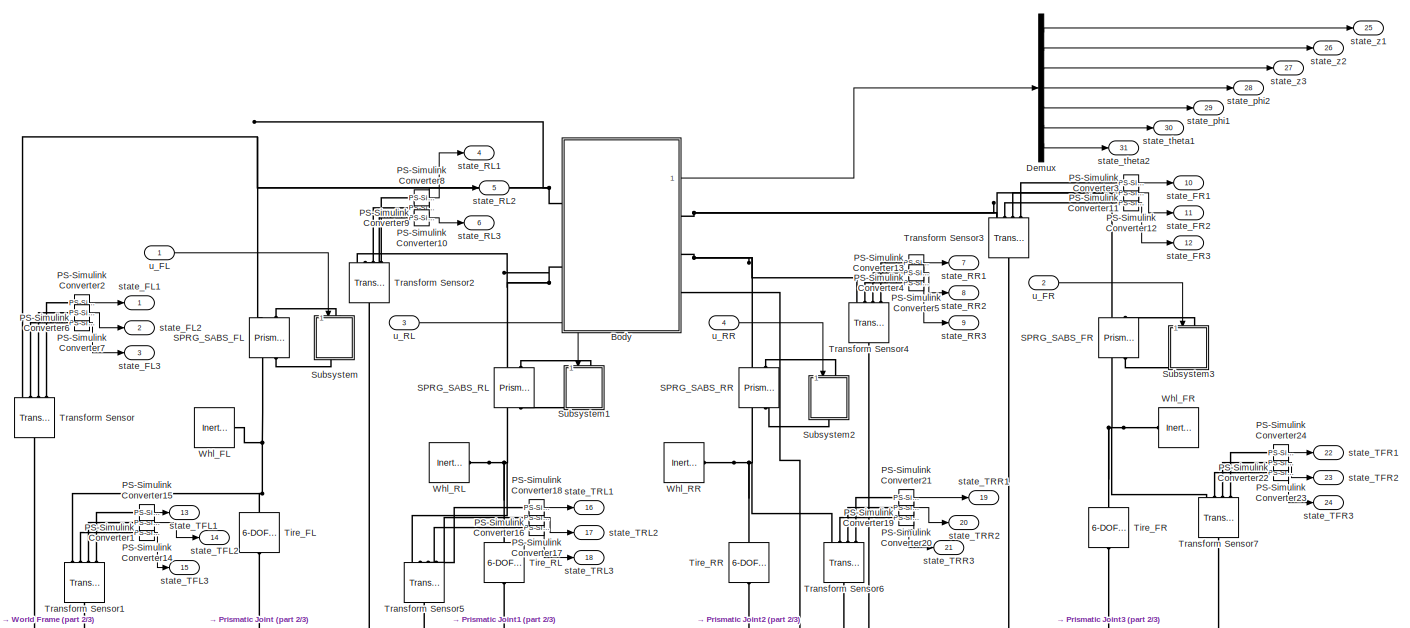
[diagram: root canvas - part 1/3, full width, top band]
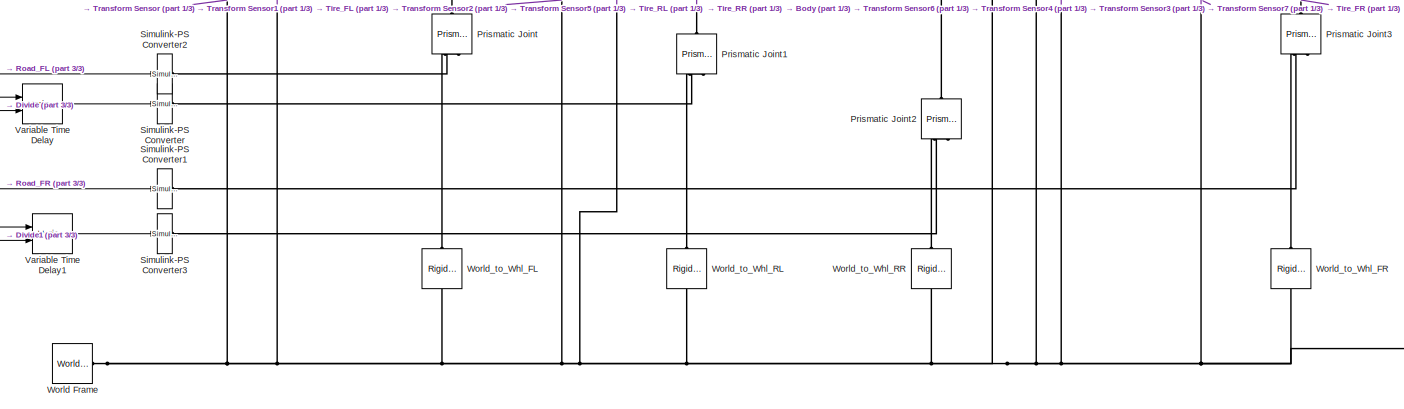
[diagram: root canvas - part 2/3, full width, bottom band]
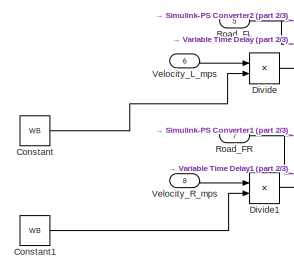
[diagram: root canvas - part 3/3, bottom left region]
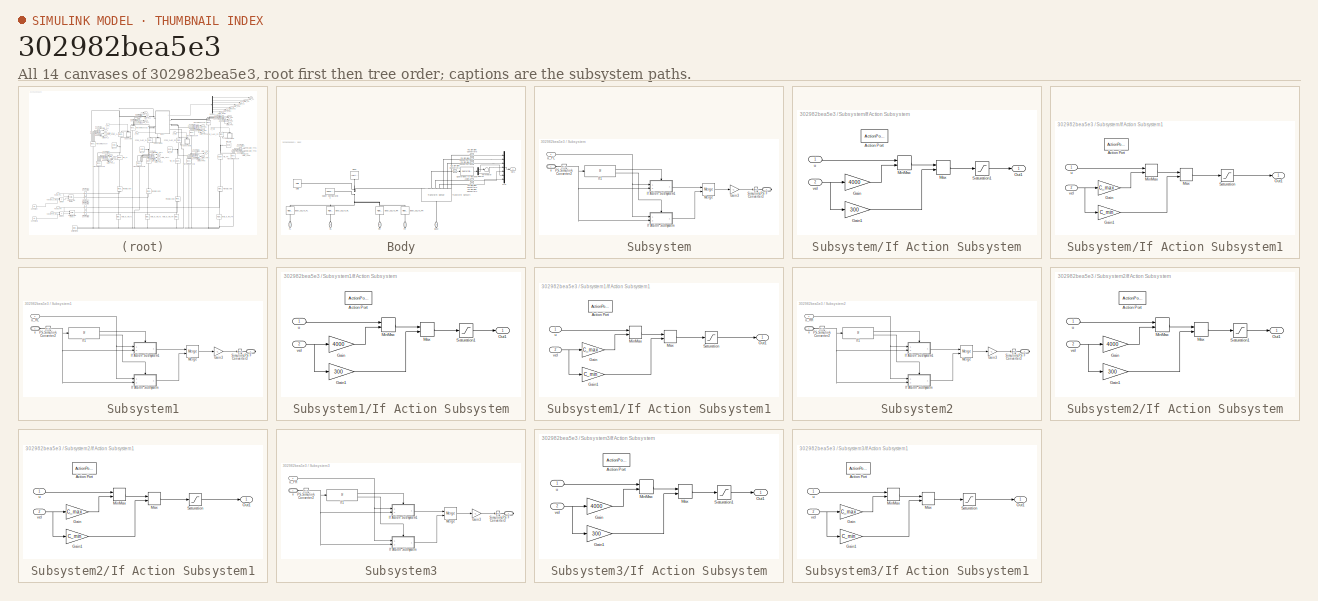
[diagram: thumbnail index - all 14 canvases of the model, root first then tree order]
MODEL slx_302982bea5e3
KIND model
CONFIG AbsTol = auto
CONFIG EnableMultiTasking = off
CONFIG FixedStep = 0.002
CONFIG MaxStep = auto
CONFIG MinStep = auto
CONFIG PreLoadFcn = fullcar_data
CONFIG RelTol = 1e-3
CONFIG SampleTimeConstraint = Unconstrained
CONFIG Solver = FixedStepAuto
CONFIG SolverName = FixedStepAuto
CONFIG StartTime = 0.0
CONFIG StopTime = inf
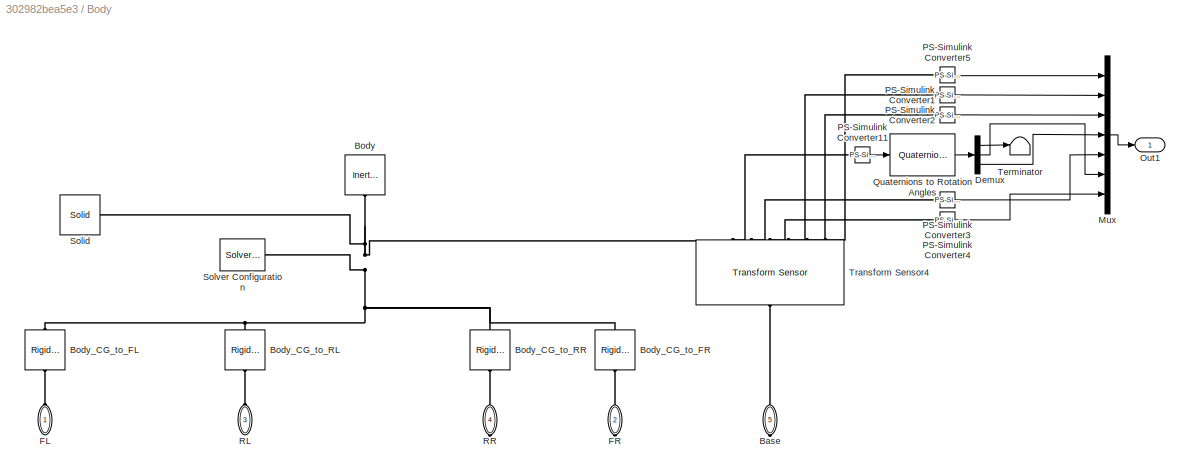
BLOCK [SubSystem] Body
  Ports = [0, 1, 0, 0, 0, 2, 3]
  RequestExecContextInheritance = off
BLOCK [PMIOPort] Body/Base
  Port = 5
  Side = Right
BLOCK [Reference] Body/Body  REF=sm_lib/Body Elements/Inertia
  Ports = [0, 0, 0, 0, 0, 0, 1]
  SourceBlock = sm_lib/Body Elements/Inertia
  SourceProductBaseCode = MS
  SourceProductName = Simscape Multibody
  SourceType = Inertia
BLOCK [Reference] Body/Body_CG_to_FL  REF=sm_lib/Frames and
Transforms/Rigid
Transform
  Ports = [0, 0, 0, 0, 0, 1, 1]
  SourceBlock = sm_lib/Frames and\nTransforms/Rigid\nTransform
  SourceProductBaseCode = MS
  SourceProductName = Simscape Multibody
  SourceType = Rigid\nTransform
BLOCK [Reference] Body/Body_CG_to_FR  REF=sm_lib/Frames and
Transforms/Rigid
Transform
  Ports = [0, 0, 0, 0, 0, 1, 1]
  SourceBlock = sm_lib/Frames and\nTransforms/Rigid\nTransform
  SourceProductBaseCode = MS
  SourceProductName = Simscape Multibody
  SourceType = Rigid\nTransform
BLOCK [Reference] Body/Body_CG_to_RL  REF=sm_lib/Frames and
Transforms/Rigid
Transform
  Ports = [0, 0, 0, 0, 0, 1, 1]
  SourceBlock = sm_lib/Frames and\nTransforms/Rigid\nTransform
  SourceProductBaseCode = MS
  SourceProductName = Simscape Multibody
  SourceType = Rigid\nTransform
BLOCK [Reference] Body/Body_CG_to_RR  REF=sm_lib/Frames and
Transforms/Rigid
Transform
  Ports = [0, 0, 0, 0, 0, 1, 1]
  SourceBlock = sm_lib/Frames and\nTransforms/Rigid\nTransform
  SourceProductBaseCode = MS
  SourceProductName = Simscape Multibody
  SourceType = Rigid\nTransform
BLOCK [Demux] Body/Demux
  DisplayOption = bar
  Outputs = 3
  Ports = [1, 3]
BLOCK [PMIOPort] Body/FL
  Side = Left
BLOCK [PMIOPort] Body/FR
  Port = 2
  Side = Right
BLOCK [Mux] Body/Mux
  DisplayOption = bar
  Inputs = 7
  Ports = [7, 1]
BLOCK [Outport] Body/Out1
  IconDisplay = Port number
BLOCK [Reference] Body/PS-Simulink Converter1  REF=nesl_utility/PS-Simulink
Converter
  Ports = [0, 1, 0, 0, 0, 1]
  SourceBlock = nesl_utility/PS-Simulink\nConverter
  SourceProductBaseCode = SS
  SourceProductName = Simscape
  SourceType = PS-Simulink\nConverter
BLOCK [Reference] Body/PS-Simulink Converter11  REF=nesl_utility/PS-Simulink
Converter
  Ports = [0, 1, 0, 0, 0, 1]
  SourceBlock = nesl_utility/PS-Simulink\nConverter
  SourceProductBaseCode = SS
  SourceProductName = Simscape
  SourceType = PS-Simulink\nConverter
BLOCK [Reference] Body/PS-Simulink Converter2  REF=nesl_utility/PS-Simulink
Converter
  Ports = [0, 1, 0, 0, 0, 1]
  SourceBlock = nesl_utility/PS-Simulink\nConverter
  SourceProductBaseCode = SS
  SourceProductName = Simscape
  SourceType = PS-Simulink\nConverter
BLOCK [Reference] Body/PS-Simulink Converter3  REF=nesl_utility/PS-Simulink
Converter
  Ports = [0, 1, 0, 0, 0, 1]
  SourceBlock = nesl_utility/PS-Simulink\nConverter
  SourceProductBaseCode = SS
  SourceProductName = Simscape
  SourceType = PS-Simulink\nConverter
BLOCK [Reference] Body/PS-Simulink Converter4  REF=nesl_utility/PS-Simulink
Converter
  Ports = [0, 1, 0, 0, 0, 1]
  SourceBlock = nesl_utility/PS-Simulink\nConverter
  SourceProductBaseCode = SS
  SourceProductName = Simscape
  SourceType = PS-Simulink\nConverter
BLOCK [Reference] Body/PS-Simulink Converter5  REF=nesl_utility/PS-Simulink
Converter
  Ports = [0, 1, 0, 0, 0, 1]
  SourceBlock = nesl_utility/PS-Simulink\nConverter
  SourceProductBaseCode = SS
  SourceProductName = Simscape
  SourceType = PS-Simulink\nConverter
BLOCK [Reference] Body/Quaternions to Rotation Angles  REF=sharedtransform/Quaternions to Rotation Angles
  AttributesFormatString = Rotation Order: %<rotationOrder>
  Ports = [1, 1]
  SourceBlock = sharedtransform/Quaternions to Rotation Angles
  SourceProductBaseCode = AE
  SourceProductName = Aerospace Blockset
  SourceType = Quat2Ang
BLOCK [PMIOPort] Body/RL
  Port = 3
  Side = Left
BLOCK [PMIOPort] Body/RR
  Port = 4
  Side = Right
BLOCK [Reference] Body/Solid  REF=sm_lib/Body Elements/Solid
  Ports = [0, 0, 0, 0, 0, 0, 1]
  SourceBlock = sm_lib/Body Elements/Solid
  SourceProductBaseCode = MS
  SourceProductName = Simscape Multibody
  SourceType = Solid
BLOCK [Reference] Body/Solver Configuration  REF=nesl_utility/Solver
Configuration
  Ports = [0, 0, 0, 0, 0, 0, 1]
  SourceBlock = nesl_utility/Solver\nConfiguration
  SourceProductBaseCode = SS
  SourceProductName = Simscape
  SourceType = Solver\nConfiguration
BLOCK [Terminator] Body/Terminator
BLOCK [Reference] Body/Transform Sensor4  REF=sm_lib/Frames and
Transforms/Transform
Sensor
  Ports = [0, 0, 0, 0, 0, 1, 7]
  SourceBlock = sm_lib/Frames and\nTransforms/Transform\nSensor
  SourceProductBaseCode = MS
  SourceProductName = Simscape Multibody
  SourceType = Transform\nSensor
BLOCK [Constant] Constant
  Value = WB
BLOCK [Constant] Constant1
  Value = WB
BLOCK [Demux] Demux
  DisplayOption = bar
  Outputs = 7
  Ports = [1, 7]
BLOCK [Product] Divide
  InputSameDT = off
  Inputs = /*
  OutDataTypeStr = Inherit: Inherit via internal rule
  Ports = [2, 1]
  RndMeth = Floor
  SaturateOnIntegerOverflow = off
BLOCK [Product] Divide1
  InputSameDT = off
  Inputs = /*
  OutDataTypeStr = Inherit: Inherit via internal rule
  Ports = [2, 1]
  RndMeth = Floor
  SaturateOnIntegerOverflow = off
BLOCK [Reference] PS-Simulink Converter1  REF=nesl_utility/PS-Simulink
Converter
  Ports = [0, 1, 0, 0, 0, 1]
  SourceBlock = nesl_utility/PS-Simulink\nConverter
  SourceProductBaseCode = SS
  SourceProductName = Simscape
  SourceType = PS-Simulink\nConverter
BLOCK [Reference] PS-Simulink Converter10  REF=nesl_utility/PS-Simulink
Converter
  Ports = [0, 1, 0, 0, 0, 1]
  SourceBlock = nesl_utility/PS-Simulink\nConverter
  SourceProductBaseCode = SS
  SourceProductName = Simscape
  SourceType = PS-Simulink\nConverter
BLOCK [Reference] PS-Simulink Converter11  REF=nesl_utility/PS-Simulink
Converter
  Ports = [0, 1, 0, 0, 0, 1]
  SourceBlock = nesl_utility/PS-Simulink\nConverter
  SourceProductBaseCode = SS
  SourceProductName = Simscape
  SourceType = PS-Simulink\nConverter
BLOCK [Reference] PS-Simulink Converter12  REF=nesl_utility/PS-Simulink
Converter
  Ports = [0, 1, 0, 0, 0, 1]
  SourceBlock = nesl_utility/PS-Simulink\nConverter
  SourceProductBaseCode = SS
  SourceProductName = Simscape
  SourceType = PS-Simulink\nConverter
BLOCK [Reference] PS-Simulink Converter13  REF=nesl_utility/PS-Simulink
Converter
  Ports = [0, 1, 0, 0, 0, 1]
  SourceBlock = nesl_utility/PS-Simulink\nConverter
  SourceProductBaseCode = SS
  SourceProductName = Simscape
  SourceType = PS-Simulink\nConverter
BLOCK [Reference] PS-Simulink Converter14  REF=nesl_utility/PS-Simulink
Converter
  Ports = [0, 1, 0, 0, 0, 1]
  SourceBlock = nesl_utility/PS-Simulink\nConverter
  SourceProductBaseCode = SS
  SourceProductName = Simscape
  SourceType = PS-Simulink\nConverter
BLOCK [Reference] PS-Simulink Converter15  REF=nesl_utility/PS-Simulink
Converter
  Ports = [0, 1, 0, 0, 0, 1]
  SourceBlock = nesl_utility/PS-Simulink\nConverter
  SourceProductBaseCode = SS
  SourceProductName = Simscape
  SourceType = PS-Simulink\nConverter
BLOCK [Reference] PS-Simulink Converter16  REF=nesl_utility/PS-Simulink
Converter
  Ports = [0, 1, 0, 0, 0, 1]
  SourceBlock = nesl_utility/PS-Simulink\nConverter
  SourceProductBaseCode = SS
  SourceProductName = Simscape
  SourceType = PS-Simulink\nConverter
BLOCK [Reference] PS-Simulink Converter17  REF=nesl_utility/PS-Simulink
Converter
  Ports = [0, 1, 0, 0, 0, 1]
  SourceBlock = nesl_utility/PS-Simulink\nConverter
  SourceProductBaseCode = SS
  SourceProductName = Simscape
  SourceType = PS-Simulink\nConverter
BLOCK [Reference] PS-Simulink Converter18  REF=nesl_utility/PS-Simulink
Converter
  Ports = [0, 1, 0, 0, 0, 1]
  SourceBlock = nesl_utility/PS-Simulink\nConverter
  SourceProductBaseCode = SS
  SourceProductName = Simscape
  SourceType = PS-Simulink\nConverter
BLOCK [Reference] PS-Simulink Converter19  REF=nesl_utility/PS-Simulink
Converter
  Ports = [0, 1, 0, 0, 0, 1]
  SourceBlock = nesl_utility/PS-Simulink\nConverter
  SourceProductBaseCode = SS
  SourceProductName = Simscape
  SourceType = PS-Simulink\nConverter
BLOCK [Reference] PS-Simulink Converter2  REF=nesl_utility/PS-Simulink
Converter
  Ports = [0, 1, 0, 0, 0, 1]
  SourceBlock = nesl_utility/PS-Simulink\nConverter
  SourceProductBaseCode = SS
  SourceProductName = Simscape
  SourceType = PS-Simulink\nConverter
BLOCK [Reference] PS-Simulink Converter20  REF=nesl_utility/PS-Simulink
Converter
  Ports = [0, 1, 0, 0, 0, 1]
  SourceBlock = nesl_utility/PS-Simulink\nConverter
  SourceProductBaseCode = SS
  SourceProductName = Simscape
  SourceType = PS-Simulink\nConverter
BLOCK [Reference] PS-Simulink Converter21  REF=nesl_utility/PS-Simulink
Converter
  Ports = [0, 1, 0, 0, 0, 1]
  SourceBlock = nesl_utility/PS-Simulink\nConverter
  SourceProductBaseCode = SS
  SourceProductName = Simscape
  SourceType = PS-Simulink\nConverter
BLOCK [Reference] PS-Simulink Converter22  REF=nesl_utility/PS-Simulink
Converter
  Ports = [0, 1, 0, 0, 0, 1]
  SourceBlock = nesl_utility/PS-Simulink\nConverter
  SourceProductBaseCode = SS
  SourceProductName = Simscape
  SourceType = PS-Simulink\nConverter
BLOCK [Reference] PS-Simulink Converter23  REF=nesl_utility/PS-Simulink
Converter
  Ports = [0, 1, 0, 0, 0, 1]
  SourceBlock = nesl_utility/PS-Simulink\nConverter
  SourceProductBaseCode = SS
  SourceProductName = Simscape
  SourceType = PS-Simulink\nConverter
BLOCK [Reference] PS-Simulink Converter24  REF=nesl_utility/PS-Simulink
Converter
  Ports = [0, 1, 0, 0, 0, 1]
  SourceBlock = nesl_utility/PS-Simulink\nConverter
  SourceProductBaseCode = SS
  SourceProductName = Simscape
  SourceType = PS-Simulink\nConverter
BLOCK [Reference] PS-Simulink Converter3  REF=nesl_utility/PS-Simulink
Converter
  Ports = [0, 1, 0, 0, 0, 1]
  SourceBlock = nesl_utility/PS-Simulink\nConverter
  SourceProductBaseCode = SS
  SourceProductName = Simscape
  SourceType = PS-Simulink\nConverter
BLOCK [Reference] PS-Simulink Converter4  REF=nesl_utility/PS-Simulink
Converter
  Ports = [0, 1, 0, 0, 0, 1]
  SourceBlock = nesl_utility/PS-Simulink\nConverter
  SourceProductBaseCode = SS
  SourceProductName = Simscape
  SourceType = PS-Simulink\nConverter
BLOCK [Reference] PS-Simulink Converter5  REF=nesl_utility/PS-Simulink
Converter
  Ports = [0, 1, 0, 0, 0, 1]
  SourceBlock = nesl_utility/PS-Simulink\nConverter
  SourceProductBaseCode = SS
  SourceProductName = Simscape
  SourceType = PS-Simulink\nConverter
BLOCK [Reference] PS-Simulink Converter6  REF=nesl_utility/PS-Simulink
Converter
  Ports = [0, 1, 0, 0, 0, 1]
  SourceBlock = nesl_utility/PS-Simulink\nConverter
  SourceProductBaseCode = SS
  SourceProductName = Simscape
  SourceType = PS-Simulink\nConverter
BLOCK [Reference] PS-Simulink Converter7  REF=nesl_utility/PS-Simulink
Converter
  Ports = [0, 1, 0, 0, 0, 1]
  SourceBlock = nesl_utility/PS-Simulink\nConverter
  SourceProductBaseCode = SS
  SourceProductName = Simscape
  SourceType = PS-Simulink\nConverter
BLOCK [Reference] PS-Simulink Converter8  REF=nesl_utility/PS-Simulink
Converter
  Ports = [0, 1, 0, 0, 0, 1]
  SourceBlock = nesl_utility/PS-Simulink\nConverter
  SourceProductBaseCode = SS
  SourceProductName = Simscape
  SourceType = PS-Simulink\nConverter
BLOCK [Reference] PS-Simulink Converter9  REF=nesl_utility/PS-Simulink
Converter
  Ports = [0, 1, 0, 0, 0, 1]
  SourceBlock = nesl_utility/PS-Simulink\nConverter
  SourceProductBaseCode = SS
  SourceProductName = Simscape
  SourceType = PS-Simulink\nConverter
BLOCK [Reference] Prismatic Joint  REF=sm_lib/Joints/Prismatic
Joint
  Ports = [0, 0, 0, 0, 0, 2, 1]
  SourceBlock = sm_lib/Joints/Prismatic\nJoint
  SourceProductBaseCode = MS
  SourceProductName = Simscape Multibody
  SourceType = Prismatic\nJoint
BLOCK [Reference] Prismatic Joint1  REF=sm_lib/Joints/Prismatic
Joint
  Ports = [0, 0, 0, 0, 0, 2, 1]
  SourceBlock = sm_lib/Joints/Prismatic\nJoint
  SourceProductBaseCode = MS
  SourceProductName = Simscape Multibody
  SourceType = Prismatic\nJoint
BLOCK [Reference] Prismatic Joint2  REF=sm_lib/Joints/Prismatic
Joint
  Ports = [0, 0, 0, 0, 0, 2, 1]
  SourceBlock = sm_lib/Joints/Prismatic\nJoint
  SourceProductBaseCode = MS
  SourceProductName = Simscape Multibody
  SourceType = Prismatic\nJoint
BLOCK [Reference] Prismatic Joint3  REF=sm_lib/Joints/Prismatic
Joint
  Ports = [0, 0, 0, 0, 0, 2, 1]
  SourceBlock = sm_lib/Joints/Prismatic\nJoint
  SourceProductBaseCode = MS
  SourceProductName = Simscape Multibody
  SourceType = Prismatic\nJoint
BLOCK [Inport] Road_FL 
  IconDisplay = Port number
  Port = 5
BLOCK [Inport] Road_FR 
  IconDisplay = Port number
  Port = 7
BLOCK [Reference] SPRG_SABS_FL  REF=sm_lib/Joints/Prismatic
Joint
  Ports = [0, 0, 0, 0, 0, 2, 2]
  SourceBlock = sm_lib/Joints/Prismatic\nJoint
  SourceProductBaseCode = MS
  SourceProductName = Simscape Multibody
  SourceType = Prismatic\nJoint
BLOCK [Reference] SPRG_SABS_FR  REF=sm_lib/Joints/Prismatic
Joint
  Ports = [0, 0, 0, 0, 0, 2, 2]
  SourceBlock = sm_lib/Joints/Prismatic\nJoint
  SourceProductBaseCode = MS
  SourceProductName = Simscape Multibody
  SourceType = Prismatic\nJoint
BLOCK [Reference] SPRG_SABS_RL  REF=sm_lib/Joints/Prismatic
Joint
  Ports = [0, 0, 0, 0, 0, 2, 2]
  SourceBlock = sm_lib/Joints/Prismatic\nJoint
  SourceProductBaseCode = MS
  SourceProductName = Simscape Multibody
  SourceType = Prismatic\nJoint
BLOCK [Reference] SPRG_SABS_RR  REF=sm_lib/Joints/Prismatic
Joint
  Ports = [0, 0, 0, 0, 0, 2, 2]
  SourceBlock = sm_lib/Joints/Prismatic\nJoint
  SourceProductBaseCode = MS
  SourceProductName = Simscape Multibody
  SourceType = Prismatic\nJoint
BLOCK [Reference] Simulink-PS Converter  REF=nesl_utility/Simulink-PS
Converter
  Ports = [1, 0, 0, 0, 0, 0, 1]
  SourceBlock = nesl_utility/Simulink-PS\nConverter
  SourceProductBaseCode = SS
  SourceProductName = Simscape
  SourceType = Simulink-PS\nConverter
BLOCK [Reference] Simulink-PS Converter1  REF=nesl_utility/Simulink-PS
Converter
  Ports = [1, 0, 0, 0, 0, 0, 1]
  SourceBlock = nesl_utility/Simulink-PS\nConverter
  SourceProductBaseCode = SS
  SourceProductName = Simscape
  SourceType = Simulink-PS\nConverter
BLOCK [Reference] Simulink-PS Converter2  REF=nesl_utility/Simulink-PS
Converter
  Ports = [1, 0, 0, 0, 0, 0, 1]
  SourceBlock = nesl_utility/Simulink-PS\nConverter
  SourceProductBaseCode = SS
  SourceProductName = Simscape
  SourceType = Simulink-PS\nConverter
BLOCK [Reference] Simulink-PS Converter3  REF=nesl_utility/Simulink-PS
Converter
  Ports = [1, 0, 0, 0, 0, 0, 1]
  SourceBlock = nesl_utility/Simulink-PS\nConverter
  SourceProductBaseCode = SS
  SourceProductName = Simscape
  SourceType = Simulink-PS\nConverter
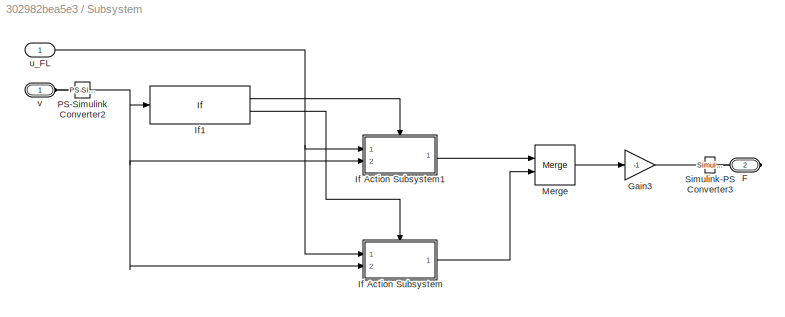
BLOCK [SubSystem] Subsystem
  Ports = [1, 0, 0, 0, 0, 1, 1]
  RequestExecContextInheritance = off
BLOCK [PMIOPort] Subsystem/F
  Port = 2
  Side = Right
BLOCK [Gain] Subsystem/Gain3
  Gain = -1
  OutDataTypeStr = Inherit: Inherit via internal rule
  ParamDataTypeStr = Inherit: Inherit via internal rule
  SaturateOnIntegerOverflow = off
BLOCK [SubSystem] Subsystem/If Action Subsystem
  Ports = [2, 1, 0, 0, 0, 0, 0, 1]
  RequestExecContextInheritance = off
  TreatAsAtomicUnit = on
BLOCK [ActionPort] Subsystem/If Action Subsystem/Action Port
BLOCK [Gain] Subsystem/If Action Subsystem/Gain
  Gain = 4000
  OutDataTypeStr = Inherit: Inherit via internal rule
  ParamDataTypeStr = Inherit: Inherit via internal rule
  SaturateOnIntegerOverflow = off
BLOCK [Gain] Subsystem/If Action Subsystem/Gain1
  Gain = 300
  OutDataTypeStr = Inherit: Inherit via internal rule
  ParamDataTypeStr = Inherit: Inherit via internal rule
  SaturateOnIntegerOverflow = off
BLOCK [MinMax] Subsystem/If Action Subsystem/Max
  Function = max
  InputSameDT = off
  Inputs = 2
  Ports = [2, 1]
  SaturateOnIntegerOverflow = off
BLOCK [MinMax] Subsystem/If Action Subsystem/MinMax
  InputSameDT = off
  Inputs = 2
  Ports = [2, 1]
  SaturateOnIntegerOverflow = off
BLOCK [Outport] Subsystem/If Action Subsystem/Out1
  IconDisplay = Port number
BLOCK [Saturate] Subsystem/If Action Subsystem/Saturation1
  InputPortMap = u0
  LowerLimit = -sat_limit
  Ports = [1, 1]
  UpperLimit = sat_limit
BLOCK [Inport] Subsystem/If Action Subsystem/u 
  IconDisplay = Port number
BLOCK [Inport] Subsystem/If Action Subsystem/vel 
  IconDisplay = Port number
  Port = 2
BLOCK [SubSystem] Subsystem/If Action Subsystem1
  Ports = [2, 1, 0, 0, 0, 0, 0, 1]
  RequestExecContextInheritance = off
  TreatAsAtomicUnit = on
BLOCK [ActionPort] Subsystem/If Action Subsystem1/Action Port
BLOCK [Gain] Subsystem/If Action Subsystem1/Gain
  Gain = C_max
  OutDataTypeStr = Inherit: Inherit via internal rule
  ParamDataTypeStr = Inherit: Inherit via internal rule
  SaturateOnIntegerOverflow = off
BLOCK [Gain] Subsystem/If Action Subsystem1/Gain1
  Gain = C_min
  OutDataTypeStr = Inherit: Inherit via internal rule
  ParamDataTypeStr = Inherit: Inherit via internal rule
  SaturateOnIntegerOverflow = off
BLOCK [MinMax] Subsystem/If Action Subsystem1/Max
  Function = max
  InputSameDT = off
  Inputs = 2
  Ports = [2, 1]
  SaturateOnIntegerOverflow = off
BLOCK [MinMax] Subsystem/If Action Subsystem1/MinMax
  InputSameDT = off
  Inputs = 2
  Ports = [2, 1]
  SaturateOnIntegerOverflow = off
BLOCK [Outport] Subsystem/If Action Subsystem1/Out1
  IconDisplay = Port number
BLOCK [Saturate] Subsystem/If Action Subsystem1/Saturation
  InputPortMap = u0
  LowerLimit = -sat_limit
  Ports = [1, 1]
  UpperLimit = sat_limit
BLOCK [Inport] Subsystem/If Action Subsystem1/u 
  IconDisplay = Port number
BLOCK [Inport] Subsystem/If Action Subsystem1/vel 
  IconDisplay = Port number
  Port = 2
BLOCK [If] Subsystem/If1
  Ports = [1, 2]
BLOCK [Merge] Subsystem/Merge
  Ports = [2, 1]
BLOCK [Reference] Subsystem/PS-Simulink Converter2  REF=nesl_utility/PS-Simulink
Converter
  Ports = [0, 1, 0, 0, 0, 1]
  SourceBlock = nesl_utility/PS-Simulink\nConverter
  SourceProductBaseCode = SS
  SourceProductName = Simscape
  SourceType = PS-Simulink\nConverter
BLOCK [Reference] Subsystem/Simulink-PS Converter3  REF=nesl_utility/Simulink-PS
Converter
  Ports = [1, 0, 0, 0, 0, 0, 1]
  SourceBlock = nesl_utility/Simulink-PS\nConverter
  SourceProductBaseCode = SS
  SourceProductName = Simscape
  SourceType = Simulink-PS\nConverter
BLOCK [Inport] Subsystem/u_FL 
  IconDisplay = Port number
BLOCK [PMIOPort] Subsystem/v 
  Side = Left
BLOCK [SubSystem] Subsystem1
  Ports = [1, 0, 0, 0, 0, 1, 1]
  RequestExecContextInheritance = off
BLOCK [PMIOPort] Subsystem1/F
  Port = 2
  Side = Right
BLOCK [Gain] Subsystem1/Gain3
  Gain = -1
  OutDataTypeStr = Inherit: Inherit via internal rule
  ParamDataTypeStr = Inherit: Inherit via internal rule
  SaturateOnIntegerOverflow = off
BLOCK [SubSystem] Subsystem1/If Action Subsystem
  Ports = [2, 1, 0, 0, 0, 0, 0, 1]
  RequestExecContextInheritance = off
  TreatAsAtomicUnit = on
BLOCK [ActionPort] Subsystem1/If Action Subsystem/Action Port
BLOCK [Gain] Subsystem1/If Action Subsystem/Gain
  Gain = 4000
  OutDataTypeStr = Inherit: Inherit via internal rule
  ParamDataTypeStr = Inherit: Inherit via internal rule
  SaturateOnIntegerOverflow = off
BLOCK [Gain] Subsystem1/If Action Subsystem/Gain1
  Gain = 300
  OutDataTypeStr = Inherit: Inherit via internal rule
  ParamDataTypeStr = Inherit: Inherit via internal rule
  SaturateOnIntegerOverflow = off
BLOCK [MinMax] Subsystem1/If Action Subsystem/Max
  Function = max
  InputSameDT = off
  Inputs = 2
  Ports = [2, 1]
  SaturateOnIntegerOverflow = off
BLOCK [MinMax] Subsystem1/If Action Subsystem/MinMax
  InputSameDT = off
  Inputs = 2
  Ports = [2, 1]
  SaturateOnIntegerOverflow = off
BLOCK [Outport] Subsystem1/If Action Subsystem/Out1
  IconDisplay = Port number
BLOCK [Saturate] Subsystem1/If Action Subsystem/Saturation1
  InputPortMap = u0
  LowerLimit = -sat_limit
  Ports = [1, 1]
  UpperLimit = sat_limit
BLOCK [Inport] Subsystem1/If Action Subsystem/u 
  IconDisplay = Port number
BLOCK [Inport] Subsystem1/If Action Subsystem/vel 
  IconDisplay = Port number
  Port = 2
BLOCK [SubSystem] Subsystem1/If Action Subsystem1
  Ports = [2, 1, 0, 0, 0, 0, 0, 1]
  RequestExecContextInheritance = off
  TreatAsAtomicUnit = on
BLOCK [ActionPort] Subsystem1/If Action Subsystem1/Action Port
BLOCK [Gain] Subsystem1/If Action Subsystem1/Gain
  Gain = C_max
  OutDataTypeStr = Inherit: Inherit via internal rule
  ParamDataTypeStr = Inherit: Inherit via internal rule
  SaturateOnIntegerOverflow = off
BLOCK [Gain] Subsystem1/If Action Subsystem1/Gain1
  Gain = C_min
  OutDataTypeStr = Inherit: Inherit via internal rule
  ParamDataTypeStr = Inherit: Inherit via internal rule
  SaturateOnIntegerOverflow = off
BLOCK [MinMax] Subsystem1/If Action Subsystem1/Max
  Function = max
  InputSameDT = off
  Inputs = 2
  Ports = [2, 1]
  SaturateOnIntegerOverflow = off
BLOCK [MinMax] Subsystem1/If Action Subsystem1/MinMax
  InputSameDT = off
  Inputs = 2
  Ports = [2, 1]
  SaturateOnIntegerOverflow = off
BLOCK [Outport] Subsystem1/If Action Subsystem1/Out1
  IconDisplay = Port number
BLOCK [Saturate] Subsystem1/If Action Subsystem1/Saturation
  InputPortMap = u0
  LowerLimit = -sat_limit
  Ports = [1, 1]
  UpperLimit = sat_limit
BLOCK [Inport] Subsystem1/If Action Subsystem1/u 
  IconDisplay = Port number
BLOCK [Inport] Subsystem1/If Action Subsystem1/vel 
  IconDisplay = Port number
  Port = 2
BLOCK [If] Subsystem1/If1
  Ports = [1, 2]
BLOCK [Merge] Subsystem1/Merge
  Ports = [2, 1]
BLOCK [Reference] Subsystem1/PS-Simulink Converter2  REF=nesl_utility/PS-Simulink
Converter
  Ports = [0, 1, 0, 0, 0, 1]
  SourceBlock = nesl_utility/PS-Simulink\nConverter
  SourceProductBaseCode = SS
  SourceProductName = Simscape
  SourceType = PS-Simulink\nConverter
BLOCK [Reference] Subsystem1/Simulink-PS Converter3  REF=nesl_utility/Simulink-PS
Converter
  Ports = [1, 0, 0, 0, 0, 0, 1]
  SourceBlock = nesl_utility/Simulink-PS\nConverter
  SourceProductBaseCode = SS
  SourceProductName = Simscape
  SourceType = Simulink-PS\nConverter
BLOCK [Inport] Subsystem1/u_RL 
  IconDisplay = Port number
BLOCK [PMIOPort] Subsystem1/v 
  Side = Left
BLOCK [SubSystem] Subsystem2
  Ports = [1, 0, 0, 0, 0, 1, 1]
  RequestExecContextInheritance = off
BLOCK [PMIOPort] Subsystem2/F
  Port = 2
  Side = Right
BLOCK [Gain] Subsystem2/Gain3
  Gain = -1
  OutDataTypeStr = Inherit: Inherit via internal rule
  ParamDataTypeStr = Inherit: Inherit via internal rule
  SaturateOnIntegerOverflow = off
BLOCK [SubSystem] Subsystem2/If Action Subsystem
  Ports = [2, 1, 0, 0, 0, 0, 0, 1]
  RequestExecContextInheritance = off
  TreatAsAtomicUnit = on
BLOCK [ActionPort] Subsystem2/If Action Subsystem/Action Port
BLOCK [Gain] Subsystem2/If Action Subsystem/Gain
  Gain = 4000
  OutDataTypeStr = Inherit: Inherit via internal rule
  ParamDataTypeStr = Inherit: Inherit via internal rule
  SaturateOnIntegerOverflow = off
BLOCK [Gain] Subsystem2/If Action Subsystem/Gain1
  Gain = 300
  OutDataTypeStr = Inherit: Inherit via internal rule
  ParamDataTypeStr = Inherit: Inherit via internal rule
  SaturateOnIntegerOverflow = off
BLOCK [MinMax] Subsystem2/If Action Subsystem/Max
  Function = max
  InputSameDT = off
  Inputs = 2
  Ports = [2, 1]
  SaturateOnIntegerOverflow = off
BLOCK [MinMax] Subsystem2/If Action Subsystem/MinMax
  InputSameDT = off
  Inputs = 2
  Ports = [2, 1]
  SaturateOnIntegerOverflow = off
BLOCK [Outport] Subsystem2/If Action Subsystem/Out1
  IconDisplay = Port number
BLOCK [Saturate] Subsystem2/If Action Subsystem/Saturation1
  InputPortMap = u0
  LowerLimit = -sat_limit
  Ports = [1, 1]
  UpperLimit = sat_limit
BLOCK [Inport] Subsystem2/If Action Subsystem/u 
  IconDisplay = Port number
BLOCK [Inport] Subsystem2/If Action Subsystem/vel 
  IconDisplay = Port number
  Port = 2
BLOCK [SubSystem] Subsystem2/If Action Subsystem1
  Ports = [2, 1, 0, 0, 0, 0, 0, 1]
  RequestExecContextInheritance = off
  TreatAsAtomicUnit = on
BLOCK [ActionPort] Subsystem2/If Action Subsystem1/Action Port
BLOCK [Gain] Subsystem2/If Action Subsystem1/Gain
  Gain = C_max
  OutDataTypeStr = Inherit: Inherit via internal rule
  ParamDataTypeStr = Inherit: Inherit via internal rule
  SaturateOnIntegerOverflow = off
BLOCK [Gain] Subsystem2/If Action Subsystem1/Gain1
  Gain = C_min
  OutDataTypeStr = Inherit: Inherit via internal rule
  ParamDataTypeStr = Inherit: Inherit via internal rule
  SaturateOnIntegerOverflow = off
BLOCK [MinMax] Subsystem2/If Action Subsystem1/Max
  Function = max
  InputSameDT = off
  Inputs = 2
  Ports = [2, 1]
  SaturateOnIntegerOverflow = off
BLOCK [MinMax] Subsystem2/If Action Subsystem1/MinMax
  InputSameDT = off
  Inputs = 2
  Ports = [2, 1]
  SaturateOnIntegerOverflow = off
BLOCK [Outport] Subsystem2/If Action Subsystem1/Out1
  IconDisplay = Port number
BLOCK [Saturate] Subsystem2/If Action Subsystem1/Saturation
  InputPortMap = u0
  LowerLimit = -sat_limit
  Ports = [1, 1]
  UpperLimit = sat_limit
BLOCK [Inport] Subsystem2/If Action Subsystem1/u 
  IconDisplay = Port number
BLOCK [Inport] Subsystem2/If Action Subsystem1/vel 
  IconDisplay = Port number
  Port = 2
BLOCK [If] Subsystem2/If1
  Ports = [1, 2]
BLOCK [Merge] Subsystem2/Merge
  Ports = [2, 1]
BLOCK [Reference] Subsystem2/PS-Simulink Converter2  REF=nesl_utility/PS-Simulink
Converter
  Ports = [0, 1, 0, 0, 0, 1]
  SourceBlock = nesl_utility/PS-Simulink\nConverter
  SourceProductBaseCode = SS
  SourceProductName = Simscape
  SourceType = PS-Simulink\nConverter
BLOCK [Reference] Subsystem2/Simulink-PS Converter3  REF=nesl_utility/Simulink-PS
Converter
  Ports = [1, 0, 0, 0, 0, 0, 1]
  SourceBlock = nesl_utility/Simulink-PS\nConverter
  SourceProductBaseCode = SS
  SourceProductName = Simscape
  SourceType = Simulink-PS\nConverter
BLOCK [Inport] Subsystem2/u_RR 
  IconDisplay = Port number
BLOCK [PMIOPort] Subsystem2/v 
  Side = Left
BLOCK [SubSystem] Subsystem3
  Ports = [1, 0, 0, 0, 0, 1, 1]
  RequestExecContextInheritance = off
BLOCK [PMIOPort] Subsystem3/F
  Port = 2
  Side = Right
BLOCK [Gain] Subsystem3/Gain3
  Gain = -1
  OutDataTypeStr = Inherit: Inherit via internal rule
  ParamDataTypeStr = Inherit: Inherit via internal rule
  SaturateOnIntegerOverflow = off
BLOCK [SubSystem] Subsystem3/If Action Subsystem
  Ports = [2, 1, 0, 0, 0, 0, 0, 1]
  RequestExecContextInheritance = off
  TreatAsAtomicUnit = on
BLOCK [ActionPort] Subsystem3/If Action Subsystem/Action Port
BLOCK [Gain] Subsystem3/If Action Subsystem/Gain
  Gain = 4000
  OutDataTypeStr = Inherit: Inherit via internal rule
  ParamDataTypeStr = Inherit: Inherit via internal rule
  SaturateOnIntegerOverflow = off
BLOCK [Gain] Subsystem3/If Action Subsystem/Gain1
  Gain = 300
  OutDataTypeStr = Inherit: Inherit via internal rule
  ParamDataTypeStr = Inherit: Inherit via internal rule
  SaturateOnIntegerOverflow = off
BLOCK [MinMax] Subsystem3/If Action Subsystem/Max
  Function = max
  InputSameDT = off
  Inputs = 2
  Ports = [2, 1]
  SaturateOnIntegerOverflow = off
BLOCK [MinMax] Subsystem3/If Action Subsystem/MinMax
  InputSameDT = off
  Inputs = 2
  Ports = [2, 1]
  SaturateOnIntegerOverflow = off
BLOCK [Outport] Subsystem3/If Action Subsystem/Out1
  IconDisplay = Port number
BLOCK [Saturate] Subsystem3/If Action Subsystem/Saturation1
  InputPortMap = u0
  LowerLimit = -sat_limit
  Ports = [1, 1]
  UpperLimit = sat_limit
BLOCK [Inport] Subsystem3/If Action Subsystem/u 
  IconDisplay = Port number
BLOCK [Inport] Subsystem3/If Action Subsystem/vel 
  IconDisplay = Port number
  Port = 2
BLOCK [SubSystem] Subsystem3/If Action Subsystem1
  Ports = [2, 1, 0, 0, 0, 0, 0, 1]
  RequestExecContextInheritance = off
  TreatAsAtomicUnit = on
BLOCK [ActionPort] Subsystem3/If Action Subsystem1/Action Port
BLOCK [Gain] Subsystem3/If Action Subsystem1/Gain
  Gain = C_max
  OutDataTypeStr = Inherit: Inherit via internal rule
  ParamDataTypeStr = Inherit: Inherit via internal rule
  SaturateOnIntegerOverflow = off
BLOCK [Gain] Subsystem3/If Action Subsystem1/Gain1
  Gain = C_min
  OutDataTypeStr = Inherit: Inherit via internal rule
  ParamDataTypeStr = Inherit: Inherit via internal rule
  SaturateOnIntegerOverflow = off
BLOCK [MinMax] Subsystem3/If Action Subsystem1/Max
  Function = max
  InputSameDT = off
  Inputs = 2
  Ports = [2, 1]
  SaturateOnIntegerOverflow = off
BLOCK [MinMax] Subsystem3/If Action Subsystem1/MinMax
  InputSameDT = off
  Inputs = 2
  Ports = [2, 1]
  SaturateOnIntegerOverflow = off
BLOCK [Outport] Subsystem3/If Action Subsystem1/Out1
  IconDisplay = Port number
BLOCK [Saturate] Subsystem3/If Action Subsystem1/Saturation
  InputPortMap = u0
  LowerLimit = -sat_limit
  Ports = [1, 1]
  UpperLimit = sat_limit
BLOCK [Inport] Subsystem3/If Action Subsystem1/u 
  IconDisplay = Port number
BLOCK [Inport] Subsystem3/If Action Subsystem1/vel 
  IconDisplay = Port number
  Port = 2
BLOCK [If] Subsystem3/If1
  Ports = [1, 2]
BLOCK [Merge] Subsystem3/Merge
  Ports = [2, 1]
BLOCK [Reference] Subsystem3/PS-Simulink Converter2  REF=nesl_utility/PS-Simulink
Converter
  Ports = [0, 1, 0, 0, 0, 1]
  SourceBlock = nesl_utility/PS-Simulink\nConverter
  SourceProductBaseCode = SS
  SourceProductName = Simscape
  SourceType = PS-Simulink\nConverter
BLOCK [Reference] Subsystem3/Simulink-PS Converter3  REF=nesl_utility/Simulink-PS
Converter
  Ports = [1, 0, 0, 0, 0, 0, 1]
  SourceBlock = nesl_utility/Simulink-PS\nConverter
  SourceProductBaseCode = SS
  SourceProductName = Simscape
  SourceType = Simulink-PS\nConverter
BLOCK [Inport] Subsystem3/u_FR 
  IconDisplay = Port number
BLOCK [PMIOPort] Subsystem3/v 
  Side = Left
BLOCK [Reference] Tire_FL  REF=sm_lib/Joints/6-DOF Joint
  Ports = [0, 0, 0, 0, 0, 1, 1]
  SourceBlock = sm_lib/Joints/6-DOF Joint
  SourceProductBaseCode = MS
  SourceProductName = Simscape Multibody
  SourceType = 6-DOF Joint
BLOCK [Reference] Tire_FR  REF=sm_lib/Joints/6-DOF Joint
  Ports = [0, 0, 0, 0, 0, 1, 1]
  SourceBlock = sm_lib/Joints/6-DOF Joint
  SourceProductBaseCode = MS
  SourceProductName = Simscape Multibody
  SourceType = 6-DOF Joint
BLOCK [Reference] Tire_RL  REF=sm_lib/Joints/6-DOF Joint
  Ports = [0, 0, 0, 0, 0, 1, 1]
  SourceBlock = sm_lib/Joints/6-DOF Joint
  SourceProductBaseCode = MS
  SourceProductName = Simscape Multibody
  SourceType = 6-DOF Joint
BLOCK [Reference] Tire_RR  REF=sm_lib/Joints/6-DOF Joint
  Ports = [0, 0, 0, 0, 0, 1, 1]
  SourceBlock = sm_lib/Joints/6-DOF Joint
  SourceProductBaseCode = MS
  SourceProductName = Simscape Multibody
  SourceType = 6-DOF Joint
BLOCK [Reference] Transform Sensor  REF=sm_lib/Frames and
Transforms/Transform
Sensor
  Ports = [0, 0, 0, 0, 0, 1, 4]
  SourceBlock = sm_lib/Frames and\nTransforms/Transform\nSensor
  SourceProductBaseCode = MS
  SourceProductName = Simscape Multibody
  SourceType = Transform\nSensor
BLOCK [Reference] Transform Sensor1  REF=sm_lib/Frames and
Transforms/Transform
Sensor
  Ports = [0, 0, 0, 0, 0, 1, 4]
  SourceBlock = sm_lib/Frames and\nTransforms/Transform\nSensor
  SourceProductBaseCode = MS
  SourceProductName = Simscape Multibody
  SourceType = Transform\nSensor
BLOCK [Reference] Transform Sensor2  REF=sm_lib/Frames and
Transforms/Transform
Sensor
  Ports = [0, 0, 0, 0, 0, 1, 4]
  SourceBlock = sm_lib/Frames and\nTransforms/Transform\nSensor
  SourceProductBaseCode = MS
  SourceProductName = Simscape Multibody
  SourceType = Transform\nSensor
BLOCK [Reference] Transform Sensor3  REF=sm_lib/Frames and
Transforms/Transform
Sensor
  Ports = [0, 0, 0, 0, 0, 1, 4]
  SourceBlock = sm_lib/Frames and\nTransforms/Transform\nSensor
  SourceProductBaseCode = MS
  SourceProductName = Simscape Multibody
  SourceType = Transform\nSensor
BLOCK [Reference] Transform Sensor4  REF=sm_lib/Frames and
Transforms/Transform
Sensor
  Ports = [0, 0, 0, 0, 0, 1, 4]
  SourceBlock = sm_lib/Frames and\nTransforms/Transform\nSensor
  SourceProductBaseCode = MS
  SourceProductName = Simscape Multibody
  SourceType = Transform\nSensor
BLOCK [Reference] Transform Sensor5  REF=sm_lib/Frames and
Transforms/Transform
Sensor
  Ports = [0, 0, 0, 0, 0, 1, 4]
  SourceBlock = sm_lib/Frames and\nTransforms/Transform\nSensor
  SourceProductBaseCode = MS
  SourceProductName = Simscape Multibody
  SourceType = Transform\nSensor
BLOCK [Reference] Transform Sensor6  REF=sm_lib/Frames and
Transforms/Transform
Sensor
  Ports = [0, 0, 0, 0, 0, 1, 4]
  SourceBlock = sm_lib/Frames and\nTransforms/Transform\nSensor
  SourceProductBaseCode = MS
  SourceProductName = Simscape Multibody
  SourceType = Transform\nSensor
BLOCK [Reference] Transform Sensor7  REF=sm_lib/Frames and
Transforms/Transform
Sensor
  Ports = [0, 0, 0, 0, 0, 1, 4]
  SourceBlock = sm_lib/Frames and\nTransforms/Transform\nSensor
  SourceProductBaseCode = MS
  SourceProductName = Simscape Multibody
  SourceType = Transform\nSensor
BLOCK [VariableTransportDelay] Variable Time Delay
  MaximumDelay = 10
  Ports = [2, 1]
BLOCK [VariableTransportDelay] Variable Time Delay1
  MaximumDelay = 10
  Ports = [2, 1]
BLOCK [Inport] Velocity_L_mps 
  IconDisplay = Port number
  Port = 6
BLOCK [Inport] Velocity_R_mps 
  IconDisplay = Port number
  Port = 8
BLOCK [Reference] Whl_FL  REF=sm_lib/Body Elements/Inertia
  Ports = [0, 0, 0, 0, 0, 0, 1]
  SourceBlock = sm_lib/Body Elements/Inertia
  SourceProductBaseCode = MS
  SourceProductName = Simscape Multibody
  SourceType = Inertia
BLOCK [Reference] Whl_FR  REF=sm_lib/Body Elements/Inertia
  Ports = [0, 0, 0, 0, 0, 0, 1]
  SourceBlock = sm_lib/Body Elements/Inertia
  SourceProductBaseCode = MS
  SourceProductName = Simscape Multibody
  SourceType = Inertia
BLOCK [Reference] Whl_RL  REF=sm_lib/Body Elements/Inertia
  Ports = [0, 0, 0, 0, 0, 0, 1]
  SourceBlock = sm_lib/Body Elements/Inertia
  SourceProductBaseCode = MS
  SourceProductName = Simscape Multibody
  SourceType = Inertia
BLOCK [Reference] Whl_RR  REF=sm_lib/Body Elements/Inertia
  Ports = [0, 0, 0, 0, 0, 0, 1]
  SourceBlock = sm_lib/Body Elements/Inertia
  SourceProductBaseCode = MS
  SourceProductName = Simscape Multibody
  SourceType = Inertia
BLOCK [Reference] World Frame  REF=sm_lib/Frames and
Transforms/World Frame
  Ports = [0, 0, 0, 0, 0, 0, 1]
  SourceBlock = sm_lib/Frames and\nTransforms/World Frame
  SourceProductBaseCode = MS
  SourceProductName = Simscape Multibody
  SourceType = World Frame
BLOCK [Reference] World_to_Whl_FL  REF=sm_lib/Frames and
Transforms/Rigid
Transform
  Ports = [0, 0, 0, 0, 0, 1, 1]
  SourceBlock = sm_lib/Frames and\nTransforms/Rigid\nTransform
  SourceProductBaseCode = MS
  SourceProductName = Simscape Multibody
  SourceType = Rigid\nTransform
BLOCK [Reference] World_to_Whl_FR  REF=sm_lib/Frames and
Transforms/Rigid
Transform
  Ports = [0, 0, 0, 0, 0, 1, 1]
  SourceBlock = sm_lib/Frames and\nTransforms/Rigid\nTransform
  SourceProductBaseCode = MS
  SourceProductName = Simscape Multibody
  SourceType = Rigid\nTransform
BLOCK [Reference] World_to_Whl_RL  REF=sm_lib/Frames and
Transforms/Rigid
Transform
  Ports = [0, 0, 0, 0, 0, 1, 1]
  SourceBlock = sm_lib/Frames and\nTransforms/Rigid\nTransform
  SourceProductBaseCode = MS
  SourceProductName = Simscape Multibody
  SourceType = Rigid\nTransform
BLOCK [Reference] World_to_Whl_RR  REF=sm_lib/Frames and
Transforms/Rigid
Transform
  Ports = [0, 0, 0, 0, 0, 1, 1]
  SourceBlock = sm_lib/Frames and\nTransforms/Rigid\nTransform
  SourceProductBaseCode = MS
  SourceProductName = Simscape Multibody
  SourceType = Rigid\nTransform
BLOCK [Outport] state_FL1
  IconDisplay = Port number
BLOCK [Outport] state_FL2
  IconDisplay = Port number
  Port = 2
BLOCK [Outport] state_FL3
  IconDisplay = Port number
  Port = 3
BLOCK [Outport] state_FR1
  IconDisplay = Port number
  Port = 10
BLOCK [Outport] state_FR2
  IconDisplay = Port number
  Port = 11
BLOCK [Outport] state_FR3
  IconDisplay = Port number
  Port = 12
BLOCK [Outport] state_RL1
  IconDisplay = Port number
  Port = 4
BLOCK [Outport] state_RL2
  IconDisplay = Port number
  Port = 5
BLOCK [Outport] state_RL3
  IconDisplay = Port number
  Port = 6
BLOCK [Outport] state_RR1
  IconDisplay = Port number
  Port = 7
BLOCK [Outport] state_RR2
  IconDisplay = Port number
  Port = 8
BLOCK [Outport] state_RR3
  IconDisplay = Port number
  Port = 9
BLOCK [Outport] state_TFL1
  IconDisplay = Port number
  Port = 13
BLOCK [Outport] state_TFL2
  IconDisplay = Port number
  Port = 14
BLOCK [Outport] state_TFL3
  IconDisplay = Port number
  Port = 15
BLOCK [Outport] state_TFR1
  IconDisplay = Port number
  Port = 22
BLOCK [Outport] state_TFR2
  IconDisplay = Port number
  Port = 23
BLOCK [Outport] state_TFR3
  IconDisplay = Port number
  Port = 24
BLOCK [Outport] state_TRL1
  IconDisplay = Port number
  Port = 16
BLOCK [Outport] state_TRL2
  IconDisplay = Port number
  Port = 17
BLOCK [Outport] state_TRL3
  IconDisplay = Port number
  Port = 18
BLOCK [Outport] state_TRR1
  IconDisplay = Port number
  Port = 19
BLOCK [Outport] state_TRR2
  IconDisplay = Port number
  Port = 20
BLOCK [Outport] state_TRR3
  IconDisplay = Port number
  Port = 21
BLOCK [Outport] state_phi1
  IconDisplay = Port number
  Port = 29
BLOCK [Outport] state_phi2
  IconDisplay = Port number
  Port = 28
BLOCK [Outport] state_theta1
  IconDisplay = Port number
  Port = 30
BLOCK [Outport] state_theta2
  IconDisplay = Port number
  Port = 31
BLOCK [Outport] state_z1
  IconDisplay = Port number
  Port = 25
BLOCK [Outport] state_z2
  IconDisplay = Port number
  Port = 26
BLOCK [Outport] state_z3
  IconDisplay = Port number
  Port = 27
BLOCK [Inport] u_FL 
  IconDisplay = Port number
BLOCK [Inport] u_FR
  IconDisplay = Port number
  Port = 2
BLOCK [Inport] u_RL 
  IconDisplay = Port number
  Port = 3
BLOCK [Inport] u_RR
  IconDisplay = Port number
  Port = 4
LINE Body/Demux:1 -> Body/Terminator:1
LINE Body/Demux:2 -> Body/Mux:6
LINE Body/Demux:3 -> Body/Mux:4
LINE Body/Mux:1 -> Body/Out1:1
LINE Body/PS-Simulink Converter11:1 -> Body/Quaternions to Rotation Angles:1
LINE Body/PS-Simulink Converter1:1 -> Body/Mux:2
LINE Body/PS-Simulink Converter2:1 -> Body/Mux:3
LINE Body/PS-Simulink Converter3:1 -> Body/Mux:5
LINE Body/PS-Simulink Converter4:1 -> Body/Mux:7
LINE Body/PS-Simulink Converter5:1 -> Body/Mux:1
LINE Body/Quaternions to Rotation Angles:1 -> Body/Demux:1
LINE Body:1 -> Demux:1
LINE Constant1:1 -> Divide1:2
LINE Constant:1 -> Divide:2
LINE Demux:1 -> state_z1:1
LINE Demux:2 -> state_z2:1
LINE Demux:3 -> state_z3:1
LINE Demux:4 -> state_phi2:1
LINE Demux:5 -> state_phi1:1
LINE Demux:6 -> state_theta1:1
LINE Demux:7 -> state_theta2:1
LINE Divide1:1 -> Variable Time Delay1:2
LINE Divide:1 -> Variable Time Delay:2
LINE PS-Simulink Converter10:1 -> state_RL2:1
LINE PS-Simulink Converter11:1 -> state_FR3:1
LINE PS-Simulink Converter12:1 -> state_FR2:1
LINE PS-Simulink Converter13:1 -> state_RR1:1
LINE PS-Simulink Converter14:1 -> state_TFL2:1
LINE PS-Simulink Converter15:1 -> state_TFL1:1
LINE PS-Simulink Converter16:1 -> state_TRL3:1
LINE PS-Simulink Converter17:1 -> state_TRL2:1
LINE PS-Simulink Converter18:1 -> state_TRL1:1
LINE PS-Simulink Converter19:1 -> state_TRR3:1
LINE PS-Simulink Converter1:1 -> state_TFL3:1
LINE PS-Simulink Converter20:1 -> state_TRR2:1
LINE PS-Simulink Converter21:1 -> state_TRR1:1
LINE PS-Simulink Converter22:1 -> state_TFR3:1
LINE PS-Simulink Converter23:1 -> state_TFR2:1
LINE PS-Simulink Converter24:1 -> state_TFR1:1
LINE PS-Simulink Converter2:1 -> state_FL1:1
LINE PS-Simulink Converter3:1 -> state_FR1:1
LINE PS-Simulink Converter4:1 -> state_RR3:1
LINE PS-Simulink Converter5:1 -> state_RR2:1
LINE PS-Simulink Converter6:1 -> state_FL3:1
LINE PS-Simulink Converter7:1 -> state_FL2:1
LINE PS-Simulink Converter8:1 -> state_RL1:1
LINE PS-Simulink Converter9:1 -> state_RL3:1
NET Road_FL :1 -> Simulink-PS Converter2:1, Variable Time Delay:1
NET Road_FR :1 -> Simulink-PS Converter1:1, Variable Time Delay1:1
LINE Subsystem/Gain3:1 -> Subsystem/Simulink-PS Converter3:1
LINE Subsystem/If Action Subsystem/Gain1:1 -> Subsystem/If Action Subsystem/Max:2
LINE Subsystem/If Action Subsystem/Gain:1 -> Subsystem/If Action Subsystem/MinMax:2
LINE Subsystem/If Action Subsystem/Max:1 -> Subsystem/If Action Subsystem/Saturation1:1
LINE Subsystem/If Action Subsystem/MinMax:1 -> Subsystem/If Action Subsystem/Max:1
LINE Subsystem/If Action Subsystem/Saturation1:1 -> Subsystem/If Action Subsystem/Out1:1
LINE Subsystem/If Action Subsystem/u :1 -> Subsystem/If Action Subsystem/MinMax:1
NET Subsystem/If Action Subsystem/vel :1 -> Subsystem/If Action Subsystem/Gain1:1, Subsystem/If Action Subsystem/Gain:1
LINE Subsystem/If Action Subsystem1/Gain1:1 -> Subsystem/If Action Subsystem1/Max:2
LINE Subsystem/If Action Subsystem1/Gain:1 -> Subsystem/If Action Subsystem1/MinMax:2
LINE Subsystem/If Action Subsystem1/Max:1 -> Subsystem/If Action Subsystem1/Saturation:1
LINE Subsystem/If Action Subsystem1/MinMax:1 -> Subsystem/If Action Subsystem1/Max:1
LINE Subsystem/If Action Subsystem1/Saturation:1 -> Subsystem/If Action Subsystem1/Out1:1
LINE Subsystem/If Action Subsystem1/u :1 -> Subsystem/If Action Subsystem1/MinMax:1
NET Subsystem/If Action Subsystem1/vel :1 -> Subsystem/If Action Subsystem1/Gain1:1, Subsystem/If Action Subsystem1/Gain:1
LINE Subsystem/If Action Subsystem1:1 -> Subsystem/Merge:1
LINE Subsystem/If Action Subsystem:1 -> Subsystem/Merge:2
LINE Subsystem/If1:1 -> Subsystem/If Action Subsystem1:ifaction
LINE Subsystem/If1:2 -> Subsystem/If Action Subsystem:ifaction
LINE Subsystem/Merge:1 -> Subsystem/Gain3:1
NET Subsystem/PS-Simulink Converter2:1 -> Subsystem/If Action Subsystem1:2, Subsystem/If Action Subsystem:2, Subsystem/If1:1
NET Subsystem/u_FL :1 -> Subsystem/If Action Subsystem1:1, Subsystem/If Action Subsystem:1
LINE Subsystem1/Gain3:1 -> Subsystem1/Simulink-PS Converter3:1
LINE Subsystem1/If Action Subsystem/Gain1:1 -> Subsystem1/If Action Subsystem/Max:2
LINE Subsystem1/If Action Subsystem/Gain:1 -> Subsystem1/If Action Subsystem/MinMax:2
LINE Subsystem1/If Action Subsystem/Max:1 -> Subsystem1/If Action Subsystem/Saturation1:1
LINE Subsystem1/If Action Subsystem/MinMax:1 -> Subsystem1/If Action Subsystem/Max:1
LINE Subsystem1/If Action Subsystem/Saturation1:1 -> Subsystem1/If Action Subsystem/Out1:1
LINE Subsystem1/If Action Subsystem/u :1 -> Subsystem1/If Action Subsystem/MinMax:1
NET Subsystem1/If Action Subsystem/vel :1 -> Subsystem1/If Action Subsystem/Gain1:1, Subsystem1/If Action Subsystem/Gain:1
LINE Subsystem1/If Action Subsystem1/Gain1:1 -> Subsystem1/If Action Subsystem1/Max:2
LINE Subsystem1/If Action Subsystem1/Gain:1 -> Subsystem1/If Action Subsystem1/MinMax:2
LINE Subsystem1/If Action Subsystem1/Max:1 -> Subsystem1/If Action Subsystem1/Saturation:1
LINE Subsystem1/If Action Subsystem1/MinMax:1 -> Subsystem1/If Action Subsystem1/Max:1
LINE Subsystem1/If Action Subsystem1/Saturation:1 -> Subsystem1/If Action Subsystem1/Out1:1
LINE Subsystem1/If Action Subsystem1/u :1 -> Subsystem1/If Action Subsystem1/MinMax:1
NET Subsystem1/If Action Subsystem1/vel :1 -> Subsystem1/If Action Subsystem1/Gain1:1, Subsystem1/If Action Subsystem1/Gain:1
LINE Subsystem1/If Action Subsystem1:1 -> Subsystem1/Merge:1
LINE Subsystem1/If Action Subsystem:1 -> Subsystem1/Merge:2
LINE Subsystem1/If1:1 -> Subsystem1/If Action Subsystem1:ifaction
LINE Subsystem1/If1:2 -> Subsystem1/If Action Subsystem:ifaction
LINE Subsystem1/Merge:1 -> Subsystem1/Gain3:1
NET Subsystem1/PS-Simulink Converter2:1 -> Subsystem1/If Action Subsystem1:2, Subsystem1/If Action Subsystem:2, Subsystem1/If1:1
NET Subsystem1/u_RL :1 -> Subsystem1/If Action Subsystem1:1, Subsystem1/If Action Subsystem:1
LINE Subsystem2/Gain3:1 -> Subsystem2/Simulink-PS Converter3:1
LINE Subsystem2/If Action Subsystem/Gain1:1 -> Subsystem2/If Action Subsystem/Max:2
LINE Subsystem2/If Action Subsystem/Gain:1 -> Subsystem2/If Action Subsystem/MinMax:2
LINE Subsystem2/If Action Subsystem/Max:1 -> Subsystem2/If Action Subsystem/Saturation1:1
LINE Subsystem2/If Action Subsystem/MinMax:1 -> Subsystem2/If Action Subsystem/Max:1
LINE Subsystem2/If Action Subsystem/Saturation1:1 -> Subsystem2/If Action Subsystem/Out1:1
LINE Subsystem2/If Action Subsystem/u :1 -> Subsystem2/If Action Subsystem/MinMax:1
NET Subsystem2/If Action Subsystem/vel :1 -> Subsystem2/If Action Subsystem/Gain1:1, Subsystem2/If Action Subsystem/Gain:1
LINE Subsystem2/If Action Subsystem1/Gain1:1 -> Subsystem2/If Action Subsystem1/Max:2
LINE Subsystem2/If Action Subsystem1/Gain:1 -> Subsystem2/If Action Subsystem1/MinMax:2
LINE Subsystem2/If Action Subsystem1/Max:1 -> Subsystem2/If Action Subsystem1/Saturation:1
LINE Subsystem2/If Action Subsystem1/MinMax:1 -> Subsystem2/If Action Subsystem1/Max:1
LINE Subsystem2/If Action Subsystem1/Saturation:1 -> Subsystem2/If Action Subsystem1/Out1:1
LINE Subsystem2/If Action Subsystem1/u :1 -> Subsystem2/If Action Subsystem1/MinMax:1
NET Subsystem2/If Action Subsystem1/vel :1 -> Subsystem2/If Action Subsystem1/Gain1:1, Subsystem2/If Action Subsystem1/Gain:1
LINE Subsystem2/If Action Subsystem1:1 -> Subsystem2/Merge:1
LINE Subsystem2/If Action Subsystem:1 -> Subsystem2/Merge:2
LINE Subsystem2/If1:1 -> Subsystem2/If Action Subsystem1:ifaction
LINE Subsystem2/If1:2 -> Subsystem2/If Action Subsystem:ifaction
LINE Subsystem2/Merge:1 -> Subsystem2/Gain3:1
NET Subsystem2/PS-Simulink Converter2:1 -> Subsystem2/If Action Subsystem1:2, Subsystem2/If Action Subsystem:2, Subsystem2/If1:1
NET Subsystem2/u_RR :1 -> Subsystem2/If Action Subsystem1:1, Subsystem2/If Action Subsystem:1
LINE Subsystem3/Gain3:1 -> Subsystem3/Simulink-PS Converter3:1
LINE Subsystem3/If Action Subsystem/Gain1:1 -> Subsystem3/If Action Subsystem/Max:2
LINE Subsystem3/If Action Subsystem/Gain:1 -> Subsystem3/If Action Subsystem/MinMax:2
LINE Subsystem3/If Action Subsystem/Max:1 -> Subsystem3/If Action Subsystem/Saturation1:1
LINE Subsystem3/If Action Subsystem/MinMax:1 -> Subsystem3/If Action Subsystem/Max:1
LINE Subsystem3/If Action Subsystem/Saturation1:1 -> Subsystem3/If Action Subsystem/Out1:1
LINE Subsystem3/If Action Subsystem/u :1 -> Subsystem3/If Action Subsystem/MinMax:1
NET Subsystem3/If Action Subsystem/vel :1 -> Subsystem3/If Action Subsystem/Gain1:1, Subsystem3/If Action Subsystem/Gain:1
LINE Subsystem3/If Action Subsystem1/Gain1:1 -> Subsystem3/If Action Subsystem1/Max:2
LINE Subsystem3/If Action Subsystem1/Gain:1 -> Subsystem3/If Action Subsystem1/MinMax:2
LINE Subsystem3/If Action Subsystem1/Max:1 -> Subsystem3/If Action Subsystem1/Saturation:1
LINE Subsystem3/If Action Subsystem1/MinMax:1 -> Subsystem3/If Action Subsystem1/Max:1
LINE Subsystem3/If Action Subsystem1/Saturation:1 -> Subsystem3/If Action Subsystem1/Out1:1
LINE Subsystem3/If Action Subsystem1/u :1 -> Subsystem3/If Action Subsystem1/MinMax:1
NET Subsystem3/If Action Subsystem1/vel :1 -> Subsystem3/If Action Subsystem1/Gain1:1, Subsystem3/If Action Subsystem1/Gain:1
LINE Subsystem3/If Action Subsystem1:1 -> Subsystem3/Merge:1
LINE Subsystem3/If Action Subsystem:1 -> Subsystem3/Merge:2
LINE Subsystem3/If1:1 -> Subsystem3/If Action Subsystem1:ifaction
LINE Subsystem3/If1:2 -> Subsystem3/If Action Subsystem:ifaction
LINE Subsystem3/Merge:1 -> Subsystem3/Gain3:1
NET Subsystem3/PS-Simulink Converter2:1 -> Subsystem3/If Action Subsystem1:2, Subsystem3/If Action Subsystem:2, Subsystem3/If1:1
NET Subsystem3/u_FR :1 -> Subsystem3/If Action Subsystem1:1, Subsystem3/If Action Subsystem:1
LINE Variable Time Delay1:1 -> Simulink-PS Converter3:1
LINE Variable Time Delay:1 -> Simulink-PS Converter:1
LINE Velocity_L_mps :1 -> Divide:1
LINE Velocity_R_mps :1 -> Divide1:1
LINE u_FL :1 -> Subsystem:1
LINE u_FR:1 -> Subsystem3:1
LINE u_RL :1 -> Subsystem1:1
LINE u_RR:1 -> Subsystem2:1
PLINE Body/Base:RConn1 -- Body/Transform Sensor4:LConn1
PNET net1: Body/Body:RConn1 -- Body/Body_CG_to_FL:LConn1 -- Body/Body_CG_to_FR:LConn1 -- Body/Body_CG_to_RL:LConn1 -- Body/Body_CG_to_RR:LConn1 -- Body/Solid:RConn1 -- Body/Solver Configuration:RConn1 -- Body/Transform Sensor4:RConn1
PLINE Body/Body_CG_to_FL:RConn1 -- Body/FL:RConn1
PLINE Body/Body_CG_to_FR:RConn1 -- Body/FR:RConn1
PLINE Body/Body_CG_to_RL:RConn1 -- Body/RL:RConn1
PLINE Body/Body_CG_to_RR:RConn1 -- Body/RR:RConn1
PLINE Body/PS-Simulink Converter11:LConn1 -- Body/Transform Sensor4:RConn2
PLINE Body/PS-Simulink Converter1:LConn1 -- Body/Transform Sensor4:RConn5
PLINE Body/PS-Simulink Converter2:LConn1 -- Body/Transform Sensor4:RConn6
PLINE Body/PS-Simulink Converter3:LConn1 -- Body/Transform Sensor4:RConn3
PLINE Body/PS-Simulink Converter4:LConn1 -- Body/Transform Sensor4:RConn4
PLINE Body/PS-Simulink Converter5:LConn1 -- Body/Transform Sensor4:RConn7
PNET net2: Body:LConn1 -- SPRG_SABS_FL:RConn1 -- Transform Sensor:RConn1
PNET net3: Body:LConn2 -- SPRG_SABS_RL:RConn1 -- Transform Sensor2:RConn1
PNET net4: Body:RConn1 -- SPRG_SABS_FR:RConn1 -- Transform Sensor3:RConn1
PNET net5: Body:RConn2 -- SPRG_SABS_RR:RConn1 -- Transform Sensor4:RConn1
PNET net6: Body:RConn3 -- Transform Sensor1:LConn1 -- Transform Sensor2:LConn1 -- Transform Sensor3:LConn1 -- Transform Sensor4:LConn1 -- Transform Sensor5:LConn1 -- Transform Sensor6:LConn1 -- Transform Sensor7:LConn1 -- Transform Sensor:LConn1 -- World Frame:RConn1 -- World_to_Whl_FL:LConn1 -- World_to_Whl_FR:LConn1 -- World_to_Whl_RL:LConn1 -- World_to_Whl_RR:LConn1
PLINE PS-Simulink Converter10:LConn1 -- Transform Sensor2:RConn3
PLINE PS-Simulink Converter11:LConn1 -- Transform Sensor3:RConn2
PLINE PS-Simulink Converter12:LConn1 -- Transform Sensor3:RConn3
PLINE PS-Simulink Converter13:LConn1 -- Transform Sensor4:RConn4
PLINE PS-Simulink Converter14:LConn1 -- Transform Sensor1:RConn3
PLINE PS-Simulink Converter15:LConn1 -- Transform Sensor1:RConn4
PLINE PS-Simulink Converter16:LConn1 -- Transform Sensor5:RConn2
PLINE PS-Simulink Converter17:LConn1 -- Transform Sensor5:RConn3
PLINE PS-Simulink Converter18:LConn1 -- Transform Sensor5:RConn4
PLINE PS-Simulink Converter19:LConn1 -- Transform Sensor6:RConn2
PLINE PS-Simulink Converter1:LConn1 -- Transform Sensor1:RConn2
PLINE PS-Simulink Converter20:LConn1 -- Transform Sensor6:RConn3
PLINE PS-Simulink Converter21:LConn1 -- Transform Sensor6:RConn4
PLINE PS-Simulink Converter22:LConn1 -- Transform Sensor7:RConn2
PLINE PS-Simulink Converter23:LConn1 -- Transform Sensor7:RConn3
PLINE PS-Simulink Converter24:LConn1 -- Transform Sensor7:RConn4
PLINE PS-Simulink Converter2:LConn1 -- Transform Sensor:RConn4
PLINE PS-Simulink Converter3:LConn1 -- Transform Sensor3:RConn4
PLINE PS-Simulink Converter4:LConn1 -- Transform Sensor4:RConn2
PLINE PS-Simulink Converter5:LConn1 -- Transform Sensor4:RConn3
PLINE PS-Simulink Converter6:LConn1 -- Transform Sensor:RConn2
PLINE PS-Simulink Converter7:LConn1 -- Transform Sensor:RConn3
PLINE PS-Simulink Converter8:LConn1 -- Transform Sensor2:RConn4
PLINE PS-Simulink Converter9:LConn1 -- Transform Sensor2:RConn2
PLINE Prismatic Joint1:LConn1 -- World_to_Whl_RL:RConn1
PLINE Prismatic Joint1:LConn2 -- Simulink-PS Converter:RConn1
PLINE Prismatic Joint1:RConn1 -- Tire_RL:LConn1
PLINE Prismatic Joint2:LConn1 -- World_to_Whl_RR:RConn1
PLINE Prismatic Joint2:LConn2 -- Simulink-PS Converter3:RConn1
PLINE Prismatic Joint2:RConn1 -- Tire_RR:LConn1
PLINE Prismatic Joint3:LConn1 -- World_to_Whl_FR:RConn1
PLINE Prismatic Joint3:LConn2 -- Simulink-PS Converter1:RConn1
PLINE Prismatic Joint3:RConn1 -- Tire_FR:LConn1
PLINE Prismatic Joint:LConn1 -- World_to_Whl_FL:RConn1
PLINE Prismatic Joint:LConn2 -- Simulink-PS Converter2:RConn1
PLINE Prismatic Joint:RConn1 -- Tire_FL:LConn1
PNET net7: SPRG_SABS_FL:LConn1 -- Tire_FL:RConn1 -- Transform Sensor1:RConn1 -- Whl_FL:RConn1
PLINE SPRG_SABS_FL:LConn2 -- Subsystem:RConn1
PLINE SPRG_SABS_FL:RConn2 -- Subsystem:LConn1
PNET net8: SPRG_SABS_FR:LConn1 -- Tire_FR:RConn1 -- Transform Sensor7:RConn1 -- Whl_FR:RConn1
PLINE SPRG_SABS_FR:LConn2 -- Subsystem3:RConn1
PLINE SPRG_SABS_FR:RConn2 -- Subsystem3:LConn1
PNET net9: SPRG_SABS_RL:LConn1 -- Tire_RL:RConn1 -- Transform Sensor5:RConn1 -- Whl_RL:RConn1
PLINE SPRG_SABS_RL:LConn2 -- Subsystem1:RConn1
PLINE SPRG_SABS_RL:RConn2 -- Subsystem1:LConn1
PNET net10: SPRG_SABS_RR:LConn1 -- Tire_RR:RConn1 -- Transform Sensor6:RConn1 -- Whl_RR:RConn1
PLINE SPRG_SABS_RR:LConn2 -- Subsystem2:RConn1
PLINE SPRG_SABS_RR:RConn2 -- Subsystem2:LConn1
PLINE Subsystem/F:RConn1 -- Subsystem/Simulink-PS Converter3:RConn1
PLINE Subsystem/PS-Simulink Converter2:LConn1 -- Subsystem/v :RConn1
PLINE Subsystem1/F:RConn1 -- Subsystem1/Simulink-PS Converter3:RConn1
PLINE Subsystem1/PS-Simulink Converter2:LConn1 -- Subsystem1/v :RConn1
PLINE Subsystem2/F:RConn1 -- Subsystem2/Simulink-PS Converter3:RConn1
PLINE Subsystem2/PS-Simulink Converter2:LConn1 -- Subsystem2/v :RConn1
PLINE Subsystem3/F:RConn1 -- Subsystem3/Simulink-PS Converter3:RConn1
PLINE Subsystem3/PS-Simulink Converter2:LConn1 -- Subsystem3/v :RConn1
note: NET lines group one-source signal fan-out (src -> all destinations, sorted); 1:1 wires keep LINE; PNET lines group multi-terminal physical nets as a canonical sorted terminal list (undirected conserving connections); 2-terminal nets keep the pairwise PLINE form
